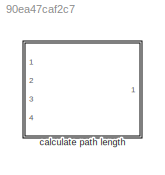
MODEL slx_90ea47caf2c7
KIND library
CONFIG AbsTol = auto
CONFIG EnableMultiTasking = off
CONFIG FixedStep = auto
CONFIG MaxStep = auto
CONFIG MinStep = auto
CONFIG RelTol = 1e-3
CONFIG SampleTimeConstraint = Unconstrained
CONFIG SolverName = VariableStepAuto
CONFIG StartTime = 0.0
CONFIG StopTime = 10.0
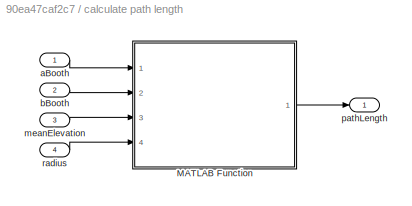
BLOCK [SubSystem] calculate path length
  Ports = [4, 1]
  RequestExecContextInheritance = off
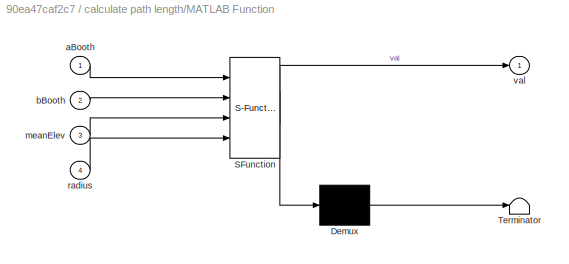
BLOCK [SubSystem] calculate path length/MATLAB Function
  ErrorFcn = Stateflow.Translate.translate
  PermitHierarchicalResolution = ExplicitOnly
  Ports = [4, 1]
  RequestExecContextInheritance = off
  SFBlockType = MATLAB Function
  TreatAsAtomicUnit = on
BLOCK [Demux] calculate path length/MATLAB Function/ Demux 
  Outputs = 1
  Ports = [1, 1]
BLOCK [S-Function] calculate path length/MATLAB Function/ SFunction 
  EnableBusSupport = off
  FunctionName = sf_sfun
  PortCounts = [4 2]
  Ports = [4, 2]
  SFcnIsStateOwnerBlock = off
  SFunctionDeploymentMode = off
  Tag = Stateflow S-Function 24
BLOCK [Terminator] calculate path length/MATLAB Function/ Terminator 
BLOCK [Inport] calculate path length/MATLAB Function/aBooth
BLOCK [Inport] calculate path length/MATLAB Function/bBooth
  Port = 2
BLOCK [Inport] calculate path length/MATLAB Function/meanElev
  Port = 3
BLOCK [Inport] calculate path length/MATLAB Function/radius
  Port = 4
BLOCK [Outport] calculate path length/MATLAB Function/val
BLOCK [Inport] calculate path length/aBooth
BLOCK [Inport] calculate path length/bBooth
  Port = 2
BLOCK [Inport] calculate path length/meanElevation
  Port = 3
BLOCK [Outport] calculate path length/pathLength
BLOCK [Inport] calculate path length/radius
  Port = 4
LINE calculate path length/MATLAB Function:1 -> calculate path length/pathLength:1
LINE calculate path length/aBooth:1 -> calculate path length/MATLAB Function:1
LINE calculate path length/bBooth:1 -> calculate path length/MATLAB Function:2
LINE calculate path length/meanElevation:1 -> calculate path length/MATLAB Function:3
LINE calculate path length/radius:1 -> calculate path length/MATLAB Function:4
CHART calculate path length/MATLAB Function states=1 transitions=1
  STATE_LABEL 'eML_blk_kernel()'
  STATE_LABEL 'SCRIPT:\nfunction val = calcPathLength(aBooth,bBooth,meanElev,radius)\n\nval = calcPathLength(aBooth,bBooth,meanElev,radius);\n\nend\n'
CHART  states=0 transitions=0
